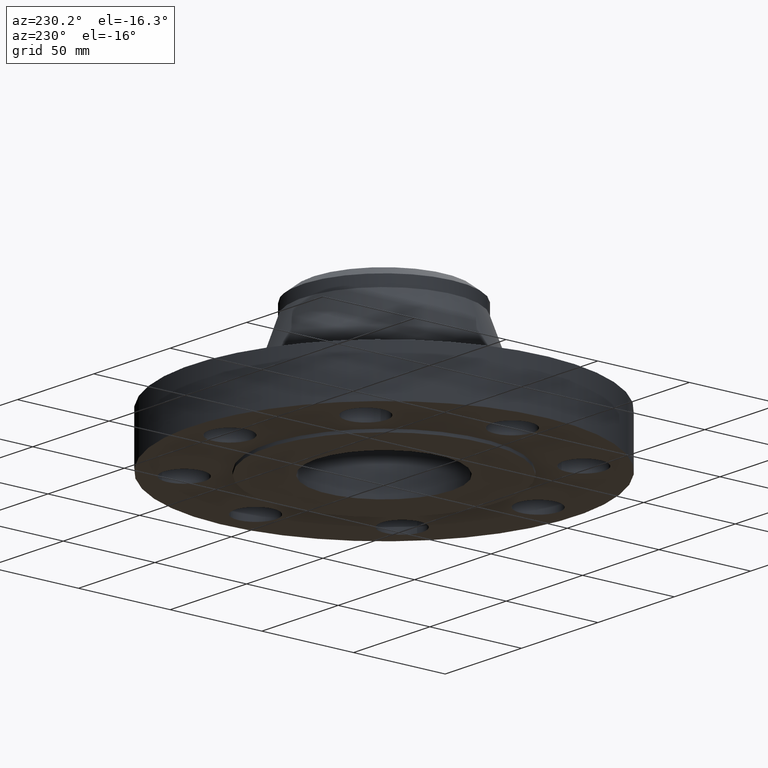
[diagram: clean part render]
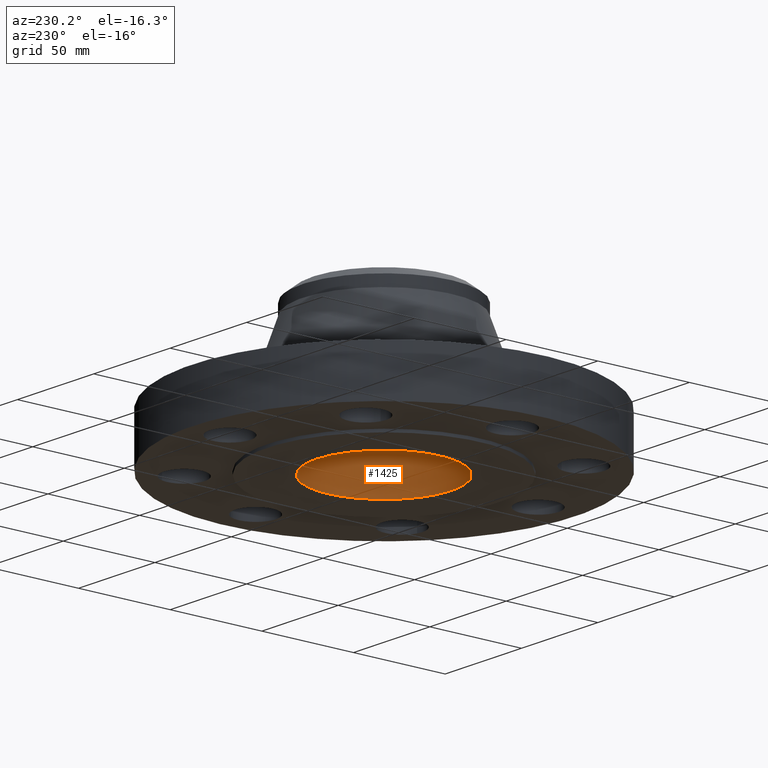
[diagram: same view with one face highlighted and labeled with its STEP entity id]
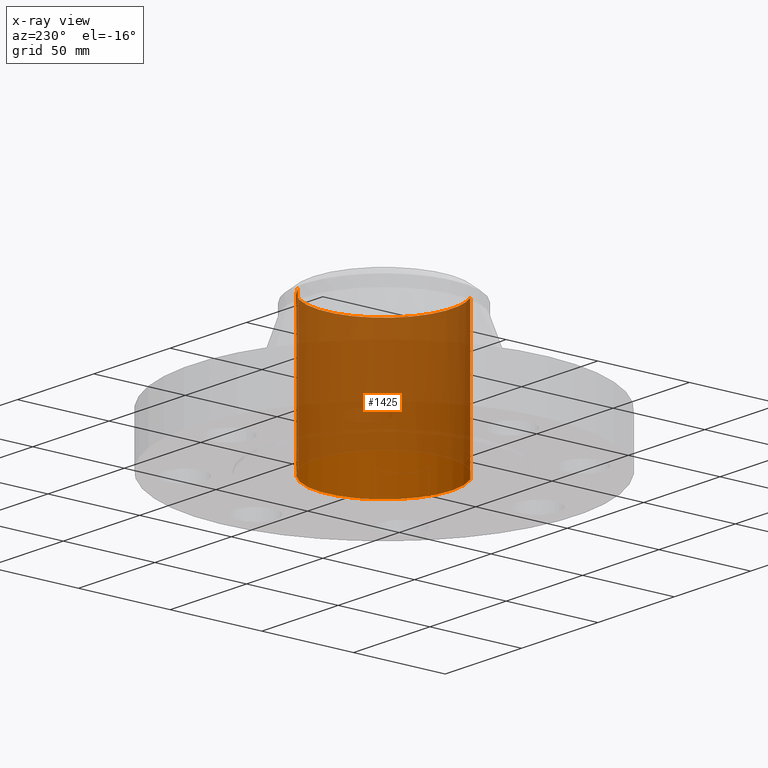
[diagram: x-ray of the same camera — body ghosted, the highlighted face saturated]
A machine part, auxiliary view. The second image highlights one B-rep face of the part: STEP entity #1425.
The next image is the same camera in x-ray: the body ghosted, the highlighted face saturated — about 78% of this face is hidden behind the body in this view.
In plain terms, the highlighted cylindrical surface (partial cylindrical patch) has radius 36.83 mm, axis along (-0, 0, -1).
Its self-contained STEP definition (entity closure, byte-faithful):
#1118=AXIS2_PLACEMENT_3D('Circle Axis2P3D',#1116,#1117,$) ;
#1386=AXIS2_PLACEMENT_3D('Cylinder Axis2P3D',#1383,#1384,#1385) ;
#1116=CARTESIAN_POINT('Axis2P3D Location',(0.,7.06682306723E-012,-0.0625000000003)) ;
#1120=CARTESIAN_POINT('Vertex',(0.695167030978,1.27249471477,-0.0625000000003)) ;
#1122=CARTESIAN_POINT('Vertex',(-0.695167030981,-1.27249471475,-0.0625000000234)) ;
#1383=CARTESIAN_POINT('Axis2P3D Location',(0.,0.,1.49875000001)) ;
#1389=CARTESIAN_POINT('Control Point',(0.695167030981,1.27249471475,3.06000000001)) ;
#1390=CARTESIAN_POINT('Control Point',(0.895050033361,1.16329813287,3.06000000001)) ;
#1391=CARTESIAN_POINT('Control Point',(1.07349233703,1.01485461525,3.06000000001)) ;
#1392=CARTESIAN_POINT('Control Point',(1.22018435983,0.832745949119,3.06000000002)) ;
#1393=CARTESIAN_POINT('Control Point',(1.43425960134,0.420823231109,3.06000000002)) ;
#1394=CARTESIAN_POINT('Control Point',(1.47668429143,-0.0414631306978,3.06000000002)) ;
#1395=CARTESIAN_POINT('Control Point',(1.45164094276,-0.273960327508,3.06000000002)) ;
#1396=CARTESIAN_POINT('Control Point',(1.31174165049,-0.716607729694,3.06000000003)) ;
#1397=CARTESIAN_POINT('Control Point',(1.01485461525,-1.07349233703,3.06000000003)) ;
#1398=CARTESIAN_POINT('Control Point',(0.83274594912,-1.22018435983,3.06000000003)) ;
#1399=CARTESIAN_POINT('Control Point',(0.42082323111,-1.43425960134,3.06000000004)) ;
#1400=CARTESIAN_POINT('Control Point',(-0.0414631306966,-1.47668429143,3.06000000004)) ;
#1401=CARTESIAN_POINT('Control Point',(-0.273960327506,-1.45164094276,3.06000000004)) ;
#1402=CARTESIAN_POINT('Control Point',(-0.4952840286,-1.38169129663,3.06000000004)) ;
#1403=CARTESIAN_POINT('Control Point',(-0.695167030979,-1.27249471475,3.06000000004)) ;
#1404=CARTESIAN_POINT('Vertex',(0.695167030981,1.27249471475,3.06000000004)) ;
#1406=CARTESIAN_POINT('Vertex',(-0.695167030978,-1.27249471473,3.06000000001)) ;
#1409=CARTESIAN_POINT('Line Origine',(0.695167030981,1.27249471475,1.49875000001)) ;
#1414=CARTESIAN_POINT('Line Origine',(-0.695167030981,-1.27249471475,1.49875000001)) ;
#1117=DIRECTION('Axis2P3D Direction',(0.,0.,-0.0393700787402)) ;
#1384=DIRECTION('Axis2P3D Direction',(-0.,0.,-0.0393700787402)) ;
#1385=DIRECTION('Axis2P3D XDirection',(0.0188750212049,0.0345504945626,0.)) ;
#1410=DIRECTION('Vector Direction',(0.,0.,-0.0393700787402)) ;
#1415=DIRECTION('Vector Direction',(0.,0.,-0.0393700787402)) ;
#1411=VECTOR('Line Direction',#1410,0.0393700787402) ;
#1416=VECTOR('Line Direction',#1415,0.0393700787402) ;
#1420=ORIENTED_EDGE('',*,*,#1408,.F.) ;
#1421=ORIENTED_EDGE('',*,*,#1413,.T.) ;
#1422=ORIENTED_EDGE('',*,*,#1124,.T.) ;
#1423=ORIENTED_EDGE('',*,*,#1418,.F.) ;
#1425=ADVANCED_FACE('PartBody',(#1424),#1387,.F.) ;
#1388=B_SPLINE_CURVE_WITH_KNOTS('',5,(#1389,#1390,#1391,#1392,#1393,#1394,#1395,#1396,#1397,#1398,#1399,#1400,#1401,#1402,#1403),.UNSPECIFIED.,.F.,.U.,(6,3,3,3,6),(-57.8524287162,-28.9262143581,0.,28.9262143581,57.8524287162),.UNSPECIFIED.) ;
#1119=CIRCLE('generated circle',#1118,1.45000000002) ;
#1387=CYLINDRICAL_SURFACE('generated cylinder',#1386,1.45000000001) ;
#1124=EDGE_CURVE('',#1121,#1123,#1119,.T.) ;
#1408=EDGE_CURVE('',#1405,#1407,#1388,.T.) ;
#1413=EDGE_CURVE('',#1405,#1121,#1412,.T.) ;
#1418=EDGE_CURVE('',#1407,#1123,#1417,.T.) ;
#1419=EDGE_LOOP('',(#1420,#1421,#1422,#1423)) ;
#1424=FACE_OUTER_BOUND('',#1419,.T.) ;
#1412=LINE('Line',#1409,#1411) ;
#1417=LINE('Line',#1414,#1416) ;
#1121=VERTEX_POINT('',#1120) ;
#1123=VERTEX_POINT('',#1122) ;
#1405=VERTEX_POINT('',#1404) ;
#1407=VERTEX_POINT('',#1406) ;